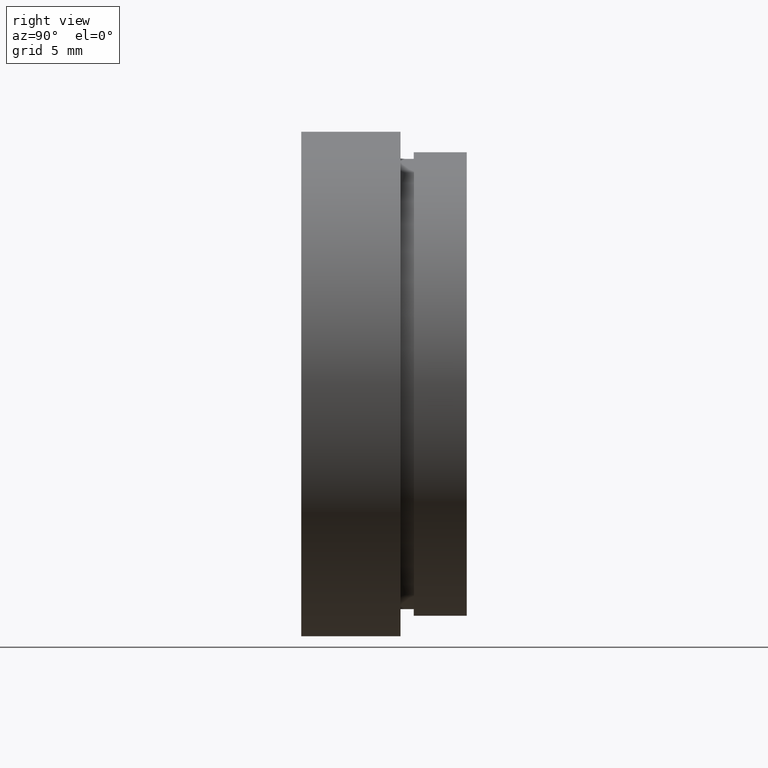
[diagram: clean part render]
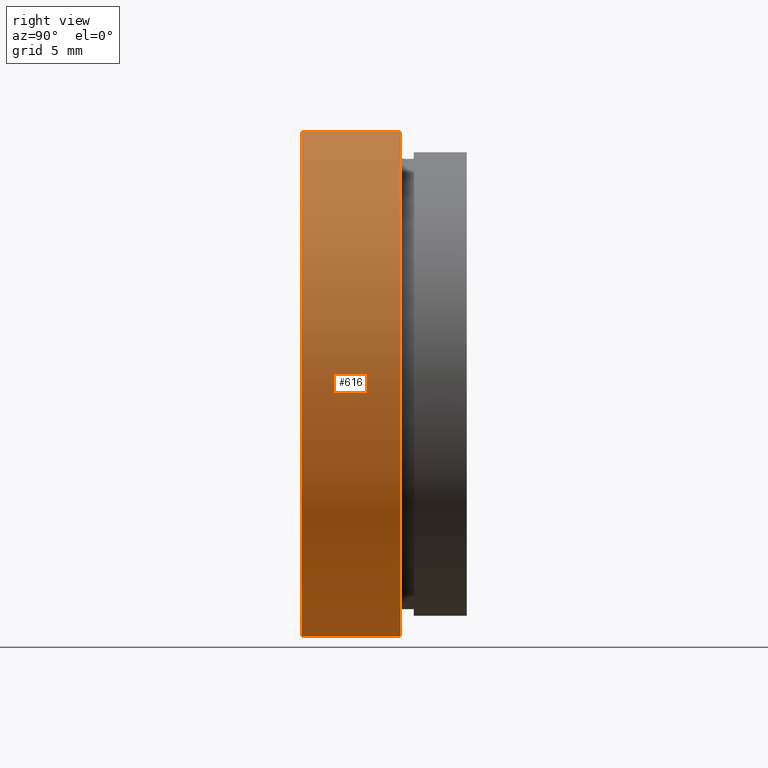
[diagram: same view with one face highlighted and labeled with its STEP entity id]
A machine part, right view. The second image highlights one B-rep face of the part: STEP entity #616.
In plain terms, the highlighted cylindrical surface (partial cylindrical patch) has radius 19.05 mm, axis along (-0, 1, -0).
Its self-contained STEP definition (entity closure, byte-faithful):
#21 = CARTESIAN_POINT ( 'NONE',  ( 0.0000000000000000000, -2.775557561562891400E-014, 19.05000000000002200 ) ) ;
#45 = ORIENTED_EDGE ( 'NONE', *, *, #584, .T. ) ;
#48 = CARTESIAN_POINT ( 'NONE',  ( 0.0000000000000000000, 7.499999999999978700, 0.0000000000000000000 ) ) ;
#84 = CIRCLE ( 'NONE', #617, 19.05000000000002200 ) ;
#89 = CIRCLE ( 'NONE', #367, 19.05000000000002200 ) ;
#107 = ORIENTED_EDGE ( 'NONE', *, *, #212, .F. ) ;
#120 = CARTESIAN_POINT ( 'NONE',  ( 0.0000000000000000000, 7.499999999999978700, 19.05000000000002200 ) ) ;
#131 = VERTEX_POINT ( 'NONE', #553 ) ;
#132 = VECTOR ( 'NONE', #183, 1000.000000000000000 ) ;
#160 = DIRECTION ( 'NONE',  ( 0.0000000000000000000, 0.0000000000000000000, 1.000000000000000000 ) ) ;
#180 = VERTEX_POINT ( 'NONE', #120 ) ;
#183 = DIRECTION ( 'NONE',  ( -0.0000000000000000000, 1.000000000000000000, -0.0000000000000000000 ) ) ;
#192 = CARTESIAN_POINT ( 'NONE',  ( 2.332952152375710400E-015, 161.3761669434274500, -19.05000000000002200 ) ) ;
#194 = DIRECTION ( 'NONE',  ( -0.0000000000000000000, 1.000000000000000000, -0.0000000000000000000 ) ) ;
#212 = EDGE_CURVE ( 'NONE', #622, #180, #495, .T. ) ;
#224 = ORIENTED_EDGE ( 'NONE', *, *, #345, .F. ) ;
#243 = DIRECTION ( 'NONE',  ( 0.0000000000000000000, 0.0000000000000000000, 1.000000000000000000 ) ) ;
#252 = ORIENTED_EDGE ( 'NONE', *, *, #455, .T. ) ;
#258 = DIRECTION ( 'NONE',  ( -0.0000000000000000000, 1.000000000000000000, -0.0000000000000000000 ) ) ;
#287 = CARTESIAN_POINT ( 'NONE',  ( 0.0000000000000000000, 161.3761669434274500, 19.05000000000002200 ) ) ;
#295 = EDGE_LOOP ( 'NONE', ( #45, #252, #224, #107 ) ) ;
#309 = CARTESIAN_POINT ( 'NONE',  ( 0.0000000000000000000, 161.3761669434274500, 0.0000000000000000000 ) ) ;
#345 = EDGE_CURVE ( 'NONE', #180, #131, #84, .T. ) ;
#356 = DIRECTION ( 'NONE',  ( 0.0000000000000000000, 0.0000000000000000000, 1.000000000000000000 ) ) ;
#367 = AXIS2_PLACEMENT_3D ( 'NONE', #540, #258, #356 ) ;
#406 = DIRECTION ( 'NONE',  ( -0.0000000000000000000, 1.000000000000000000, -0.0000000000000000000 ) ) ;
#444 = AXIS2_PLACEMENT_3D ( 'NONE', #309, #406, #160 ) ;
#455 = EDGE_CURVE ( 'NONE', #479, #131, #556, .T. ) ;
#479 = VERTEX_POINT ( 'NONE', #536 ) ;
#495 = LINE ( 'NONE', #287, #132 ) ;
#508 = VECTOR ( 'NONE', #583, 1000.000000000000000 ) ;
#536 = CARTESIAN_POINT ( 'NONE',  ( 2.332952152375710400E-015, -2.775557561562891400E-014, -19.05000000000002200 ) ) ;
#540 = CARTESIAN_POINT ( 'NONE',  ( 0.0000000000000000000, -2.775557561562891400E-014, 0.0000000000000000000 ) ) ;
#553 = CARTESIAN_POINT ( 'NONE',  ( 2.332952152375710400E-015, 7.499999999999978700, -19.05000000000002200 ) ) ;
#556 = LINE ( 'NONE', #192, #508 ) ;
#558 = FACE_OUTER_BOUND ( 'NONE', #295, .T. ) ;
#583 = DIRECTION ( 'NONE',  ( -0.0000000000000000000, 1.000000000000000000, -0.0000000000000000000 ) ) ;
#584 = EDGE_CURVE ( 'NONE', #622, #479, #89, .T. ) ;
#616 = ADVANCED_FACE ( 'NONE', ( #558 ), #620, .T. ) ;
#617 = AXIS2_PLACEMENT_3D ( 'NONE', #48, #194, #243 ) ;
#620 = CYLINDRICAL_SURFACE ( 'NONE', #444, 19.05000000000002200 ) ;
#622 = VERTEX_POINT ( 'NONE', #21 ) ;